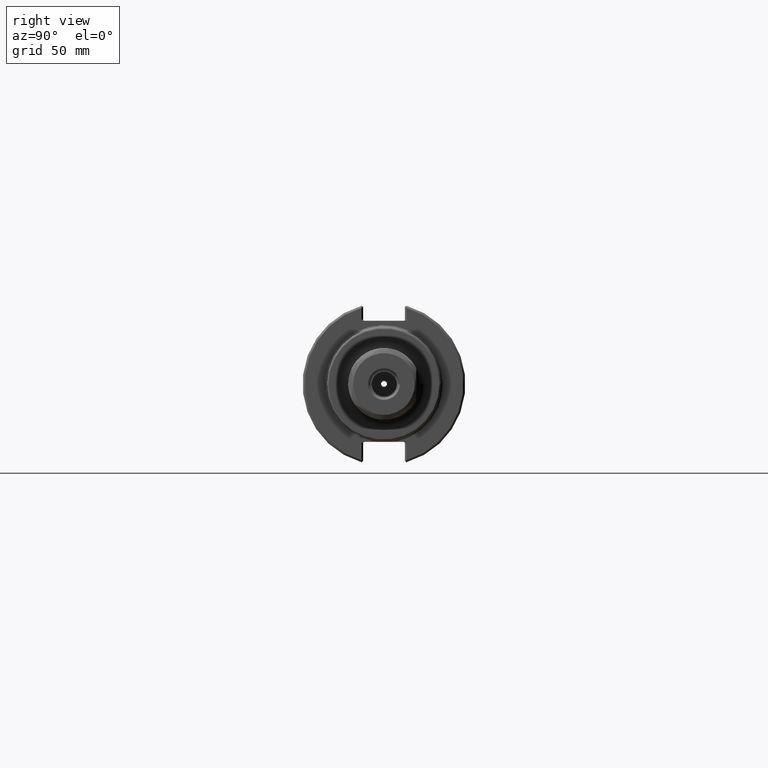
[diagram: clean part render]
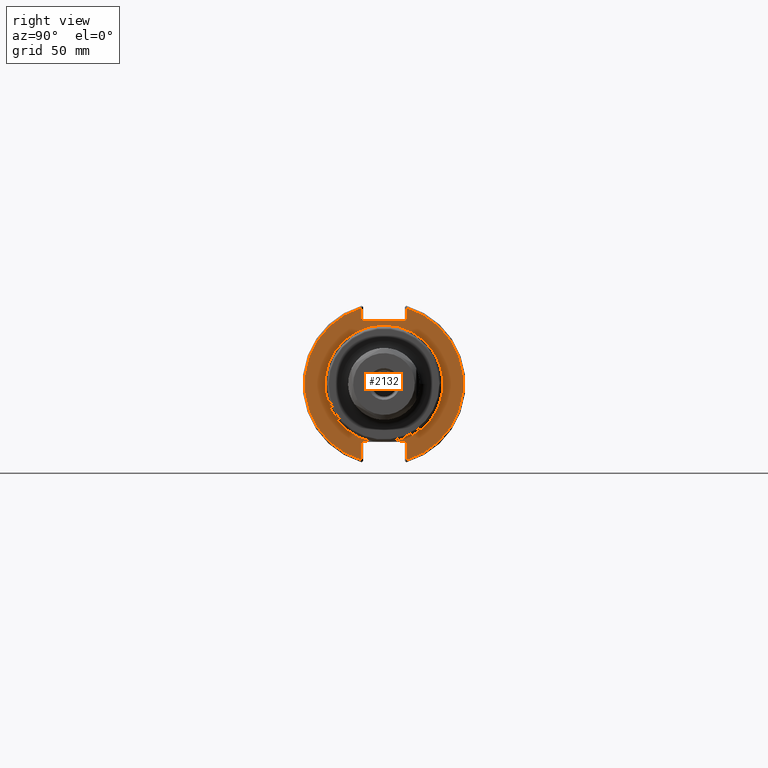
[diagram: same view with one face highlighted and labeled with its STEP entity id]
A machine part, right view. The second image highlights one B-rep face of the part: STEP entity #2132.
In plain terms, the highlighted planar face has unit normal (1, 0, 0).
Its self-contained STEP definition (entity closure, byte-faithful):
#70=ELLIPSE('',#2280,0.0282842712474643,0.02);
#71=ELLIPSE('',#2282,0.028284271247462,0.02);
#72=ELLIPSE('',#2283,0.028284271247462,0.02);
#73=ELLIPSE('',#2285,0.0282842712474597,0.02);
#92=LINE('',#3198,#214);
#93=LINE('',#3202,#215);
#94=LINE('',#3206,#216);
#95=LINE('',#3210,#217);
#96=LINE('',#3214,#218);
#97=LINE('',#3218,#219);
#98=LINE('',#3221,#220);
#214=VECTOR('',#2551,0.142127642103186);
#215=VECTOR('',#2554,0.262202973846744);
#216=VECTOR('',#2557,0.178202973846762);
#217=VECTOR('',#2560,0.633431457505076);
#218=VECTOR('',#2563,0.178202973846928);
#219=VECTOR('',#2566,0.262202973846945);
#220=VECTOR('',#2569,0.14212764210251);
#362=PLANE('',#2279);
#518=FACE_OUTER_BOUND('',#659,.T.);
#659=EDGE_LOOP('',(#1441,#1442,#1443,#1444,#1445,#1446,#1447,#1448,#1449,
#1450,#1451,#1452,#1453,#1454));
#847=CIRCLE('',#2277,0.905);
#849=CIRCLE('',#2281,1.22);
#850=CIRCLE('',#2284,1.22);
#940=VERTEX_POINT('',#3180);
#941=VERTEX_POINT('',#3181);
#943=VERTEX_POINT('',#3197);
#944=VERTEX_POINT('',#3199);
#945=VERTEX_POINT('',#3201);
#946=VERTEX_POINT('',#3203);
#947=VERTEX_POINT('',#3205);
#948=VERTEX_POINT('',#3207);
#949=VERTEX_POINT('',#3209);
#950=VERTEX_POINT('',#3211);
#951=VERTEX_POINT('',#3213);
#952=VERTEX_POINT('',#3215);
#953=VERTEX_POINT('',#3217);
#954=VERTEX_POINT('',#3219);
#1148=EDGE_CURVE('',#940,#941,#847,.T.);
#1150=EDGE_CURVE('',#943,#940,#92,.T.);
#1151=EDGE_CURVE('',#944,#943,#70,.T.);
#1152=EDGE_CURVE('',#945,#944,#93,.T.);
#1153=EDGE_CURVE('',#946,#945,#849,.T.);
#1154=EDGE_CURVE('',#947,#946,#94,.T.);
#1155=EDGE_CURVE('',#948,#947,#71,.T.);
#1156=EDGE_CURVE('',#949,#948,#95,.T.);
#1157=EDGE_CURVE('',#950,#949,#72,.T.);
#1158=EDGE_CURVE('',#951,#950,#96,.T.);
#1159=EDGE_CURVE('',#952,#951,#850,.T.);
#1160=EDGE_CURVE('',#953,#952,#97,.T.);
#1161=EDGE_CURVE('',#954,#953,#73,.T.);
#1162=EDGE_CURVE('',#941,#954,#98,.T.);
#1441=ORIENTED_EDGE('',*,*,#1148,.F.);
#1442=ORIENTED_EDGE('',*,*,#1150,.F.);
#1443=ORIENTED_EDGE('',*,*,#1151,.F.);
#1444=ORIENTED_EDGE('',*,*,#1152,.F.);
#1445=ORIENTED_EDGE('',*,*,#1153,.F.);
#1446=ORIENTED_EDGE('',*,*,#1154,.F.);
#1447=ORIENTED_EDGE('',*,*,#1155,.F.);
#1448=ORIENTED_EDGE('',*,*,#1156,.F.);
#1449=ORIENTED_EDGE('',*,*,#1157,.F.);
#1450=ORIENTED_EDGE('',*,*,#1158,.F.);
#1451=ORIENTED_EDGE('',*,*,#1159,.F.);
#1452=ORIENTED_EDGE('',*,*,#1160,.F.);
#1453=ORIENTED_EDGE('',*,*,#1161,.F.);
#1454=ORIENTED_EDGE('',*,*,#1162,.F.);
#2132=ADVANCED_FACE('',(#518),#362,.T.);
#2277=AXIS2_PLACEMENT_3D('',#3193,#2545,#2546);
#2279=AXIS2_PLACEMENT_3D('',#3196,#2549,#2550);
#2280=AXIS2_PLACEMENT_3D('',#3200,#2552,#2553);
#2281=AXIS2_PLACEMENT_3D('',#3204,#2555,#2556);
#2282=AXIS2_PLACEMENT_3D('',#3208,#2558,#2559);
#2283=AXIS2_PLACEMENT_3D('',#3212,#2561,#2562);
#2284=AXIS2_PLACEMENT_3D('',#3216,#2564,#2565);
#2285=AXIS2_PLACEMENT_3D('',#3220,#2567,#2568);
#2545=DIRECTION('center_axis',(1.,0.,0.));
#2546=DIRECTION('ref_axis',(0.,-1.,1.22464679914735E-16));
#2549=DIRECTION('center_axis',(1.,0.,0.));
#2550=DIRECTION('ref_axis',(0.,0.,-1.));
#2551=DIRECTION('',(0.,-1.,0.));
#2552=DIRECTION('center_axis',(1.,0.,0.));
#2553=DIRECTION('ref_axis',(3.41480999208005E-17,1.,-2.41463530186338E-16));
#2554=DIRECTION('',(0.,0.,1.));
#2555=DIRECTION('center_axis',(-1.,0.,0.));
#2556=DIRECTION('ref_axis',(0.,1.,0.));
#2557=DIRECTION('',(0.,0.,1.));
#2558=DIRECTION('center_axis',(1.,0.,0.));
#2559=DIRECTION('ref_axis',(0.,1.,-9.65854120745431E-17));
#2560=DIRECTION('',(0.,1.,3.67894043826846E-32));
#2561=DIRECTION('center_axis',(1.,0.,0.));
#2562=DIRECTION('ref_axis',(3.41480999208031E-17,-1.,0.));
#2563=DIRECTION('',(0.,0.,-1.));
#2564=DIRECTION('center_axis',(-1.,0.,0.));
#2565=DIRECTION('ref_axis',(0.,-1.,0.));
#2566=DIRECTION('',(0.,0.,-1.));
#2567=DIRECTION('center_axis',(1.,0.,0.));
#2568=DIRECTION('ref_axis',(0.,-1.,1.93170824149102E-16));
#2569=DIRECTION('',(0.,-1.,0.));
#3180=CARTESIAN_POINT('',(0.75,0.17458808664969,-0.888));
#3181=CARTESIAN_POINT('',(0.75,-0.17458808664969,-0.888));
#3193=CARTESIAN_POINT('Origin',(0.75,0.,0.));
#3196=CARTESIAN_POINT('Origin',(0.75,1.0625,0.));
#3197=CARTESIAN_POINT('',(0.75,0.316715728752876,-0.888));
#3198=CARTESIAN_POINT('',(0.75,0.531250000000153,-0.888));
#3199=CARTESIAN_POINT('',(0.75,0.34500000000034,-0.908));
#3200=CARTESIAN_POINT('Origin',(0.75,0.316715728752876,-0.908));
#3201=CARTESIAN_POINT('',(0.75,0.34500000000034,-1.17020297384674));
#3202=CARTESIAN_POINT('',(0.75,0.34500000000034,-0.444));
#3203=CARTESIAN_POINT('',(0.75,0.345000000000281,1.17020297384676));
#3204=CARTESIAN_POINT('Origin',(0.75,0.,0.));
#3205=CARTESIAN_POINT('',(0.75,0.345000000000281,0.992));
#3206=CARTESIAN_POINT('',(0.75,0.345000000000281,0.486));
#3207=CARTESIAN_POINT('',(0.75,0.316715728752819,0.972));
#3208=CARTESIAN_POINT('Origin',(0.75,0.316715728752819,0.992));
#3209=CARTESIAN_POINT('',(0.75,-0.316715728752257,0.972));
#3210=CARTESIAN_POINT('',(0.75,0.53125000000014,0.972));
#3211=CARTESIAN_POINT('',(0.75,-0.344999999999719,0.992));
#3212=CARTESIAN_POINT('Origin',(0.75,-0.316715728752257,0.992));
#3213=CARTESIAN_POINT('',(0.75,-0.344999999999719,1.17020297384693));
#3214=CARTESIAN_POINT('',(0.75,-0.344999999999719,0.486));
#3215=CARTESIAN_POINT('',(0.75,-0.34499999999966,-1.17020297384695));
#3216=CARTESIAN_POINT('Origin',(0.75,0.,0.));
#3217=CARTESIAN_POINT('',(0.75,-0.34499999999966,-0.908));
#3218=CARTESIAN_POINT('',(0.75,-0.34499999999966,-0.444));
#3219=CARTESIAN_POINT('',(0.75,-0.3167157287522,-0.888));
#3220=CARTESIAN_POINT('Origin',(0.75,-0.3167157287522,-0.908));
#3221=CARTESIAN_POINT('',(0.75,0.531250000000153,-0.888));